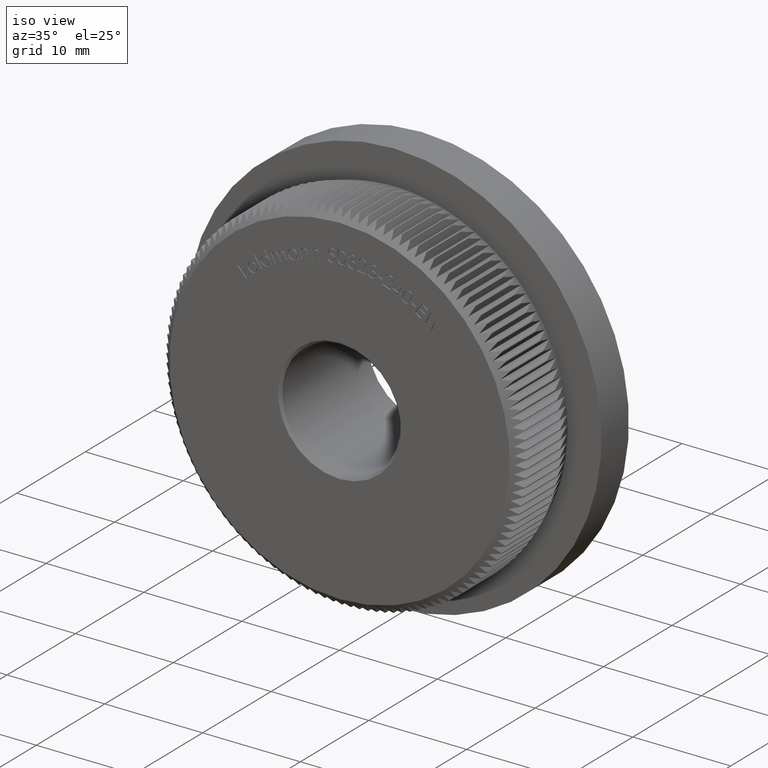
[diagram: clean part render]
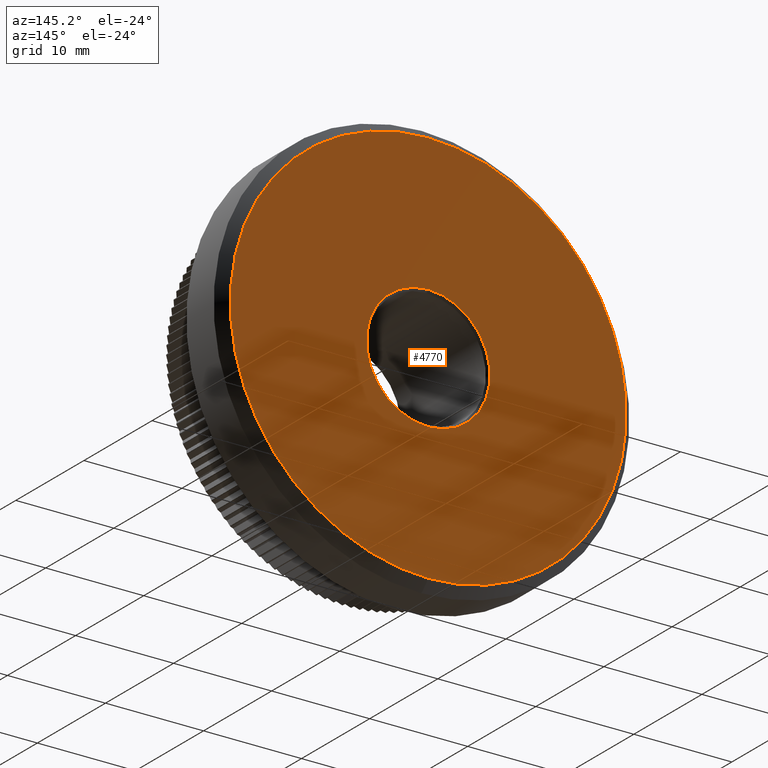
[diagram: tour spotlight — one face highlighted and labeled with its STEP entity id]
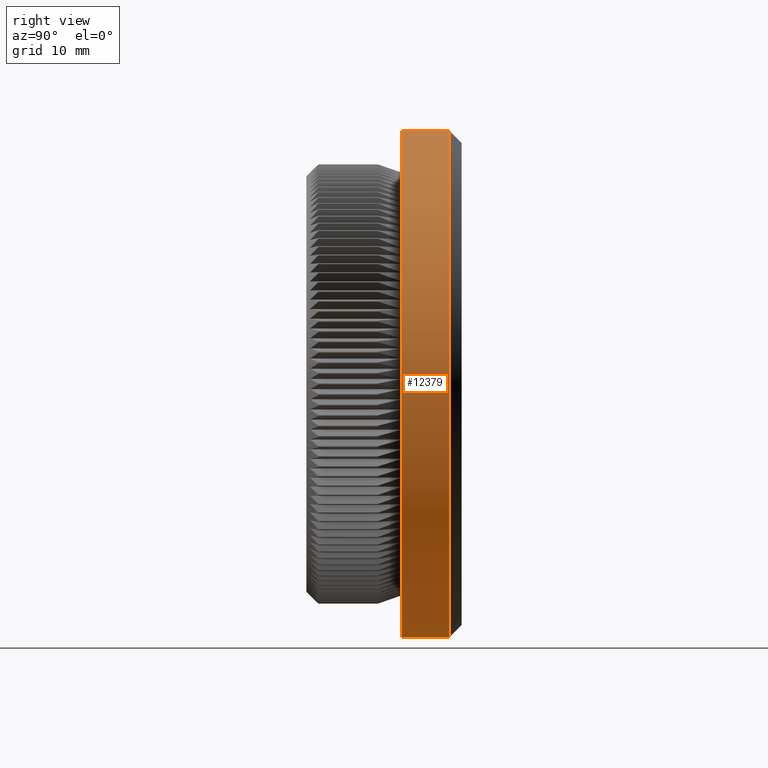
[diagram: tour spotlight — one face highlighted and labeled with its STEP entity id]
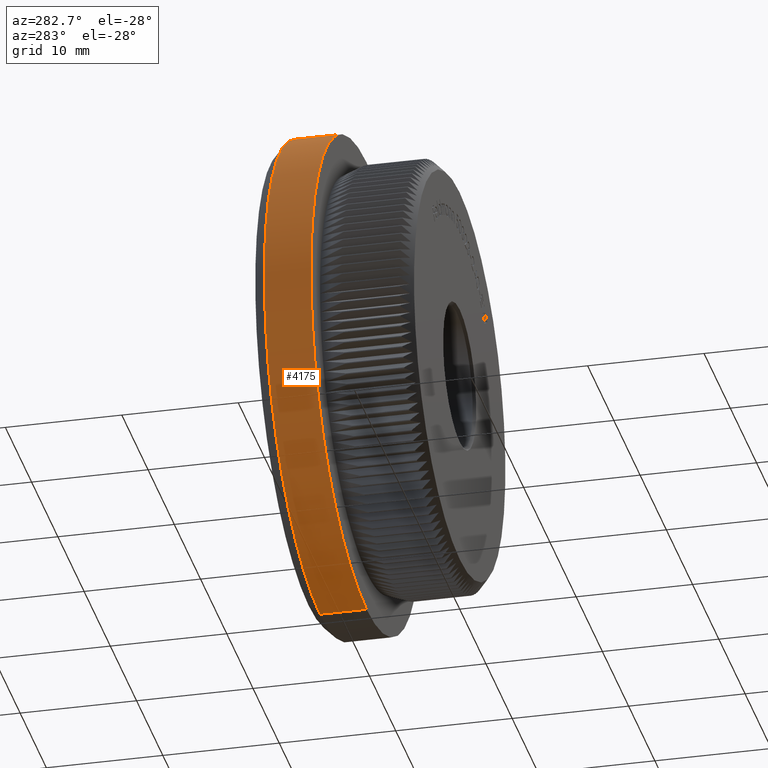
[diagram: tour spotlight — one face highlighted and labeled with its STEP entity id]
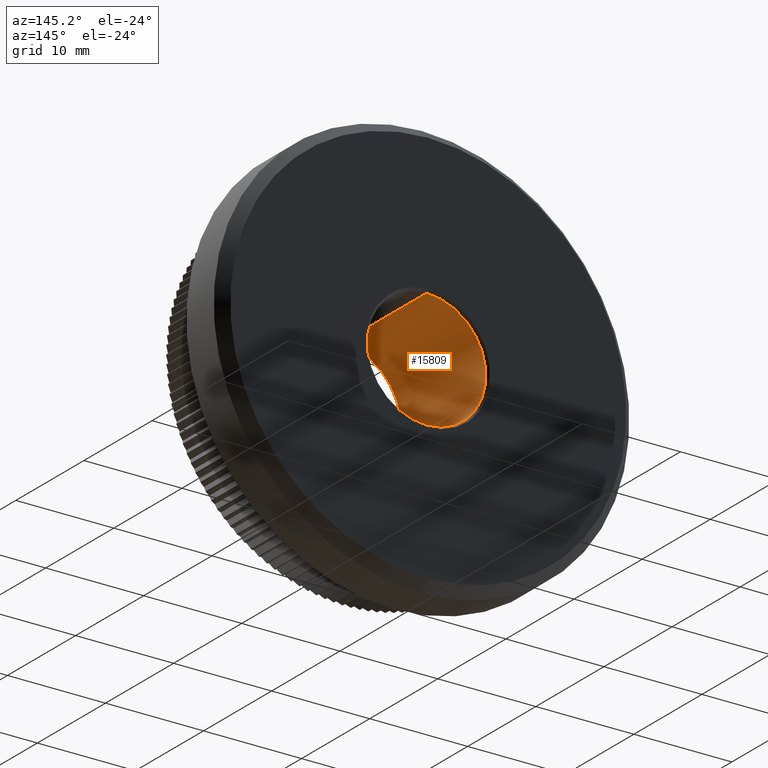
[diagram: tour spotlight — one face highlighted and labeled with its STEP entity id]
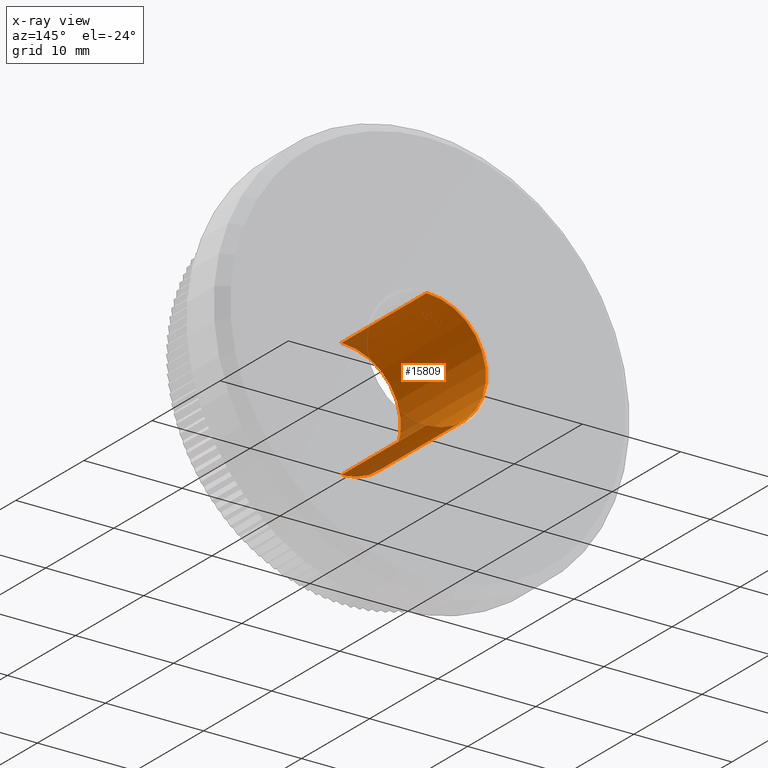
[diagram: x-ray of the same camera — body ghosted, this tour face saturated]
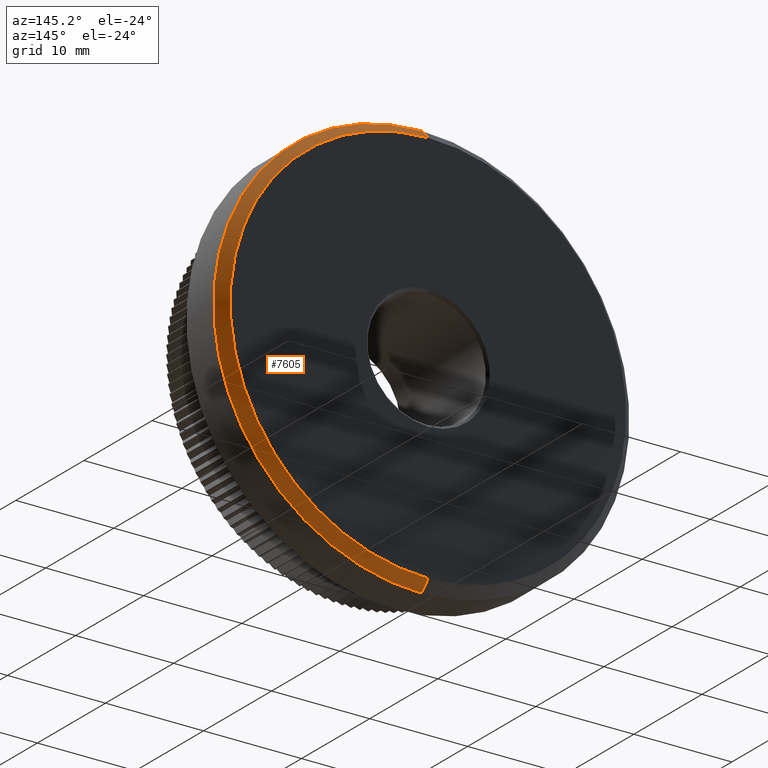
[diagram: tour spotlight — one face highlighted and labeled with its STEP entity id]
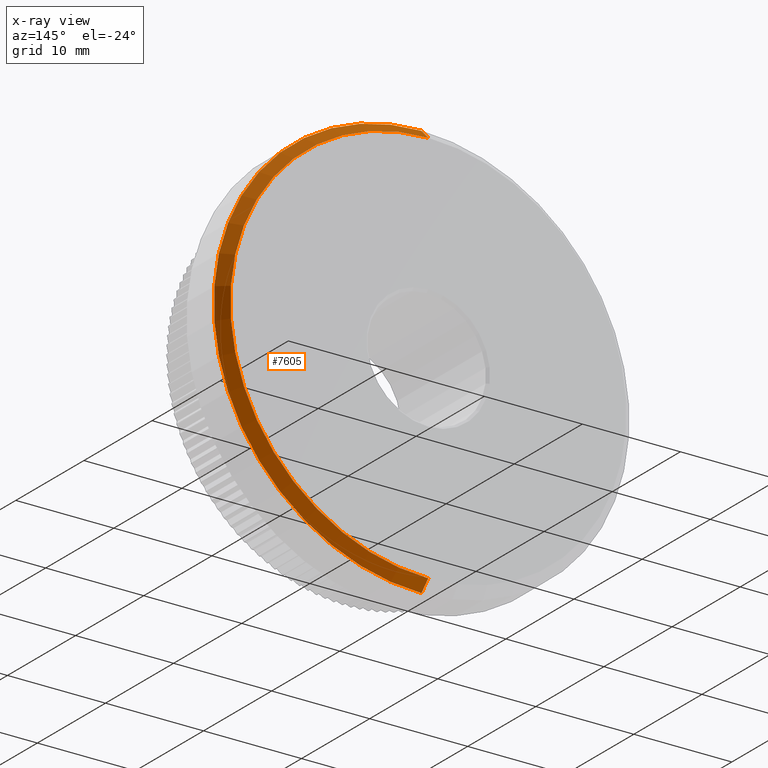
[diagram: x-ray of the same camera — body ghosted, this tour face saturated]
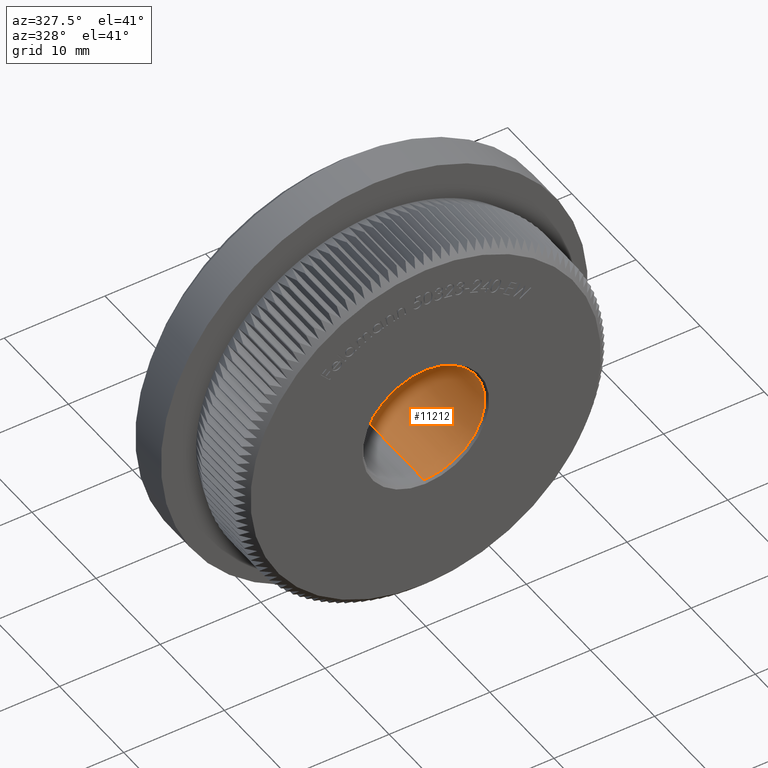
[diagram: tour spotlight — one face highlighted and labeled with its STEP entity id]
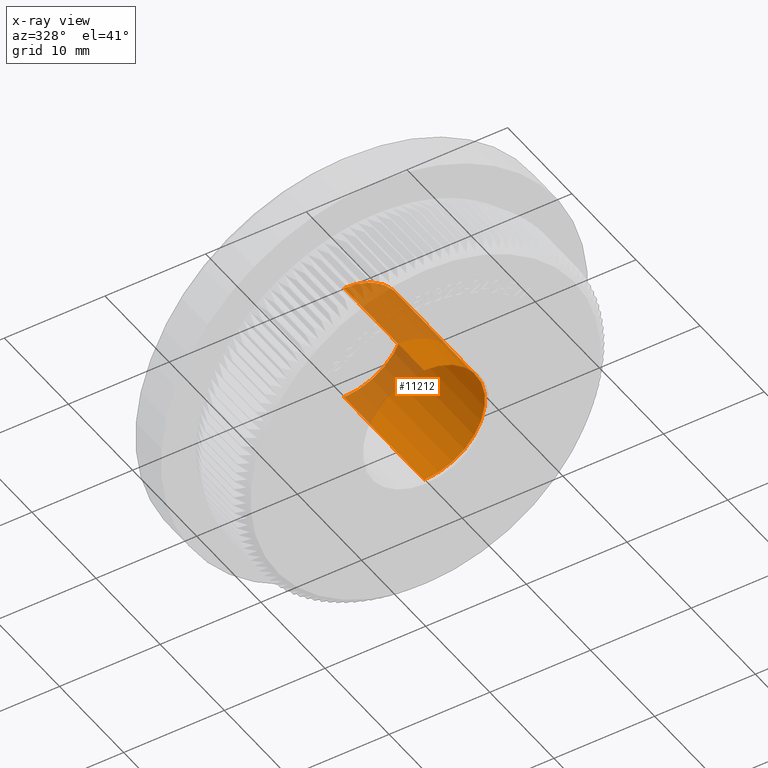
[diagram: x-ray of the same camera — body ghosted, this tour face saturated]
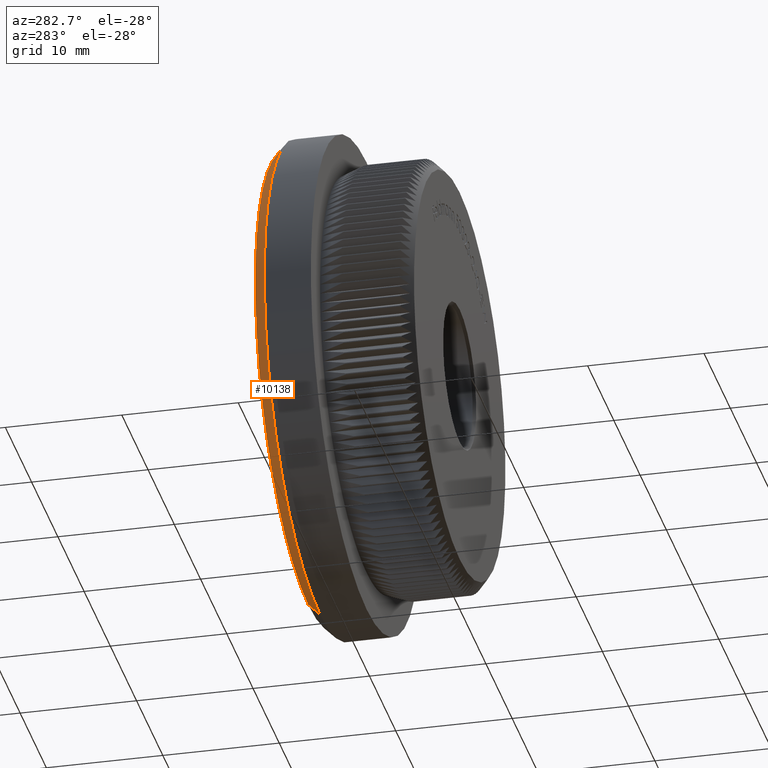
[diagram: tour spotlight — one face highlighted and labeled with its STEP entity id]
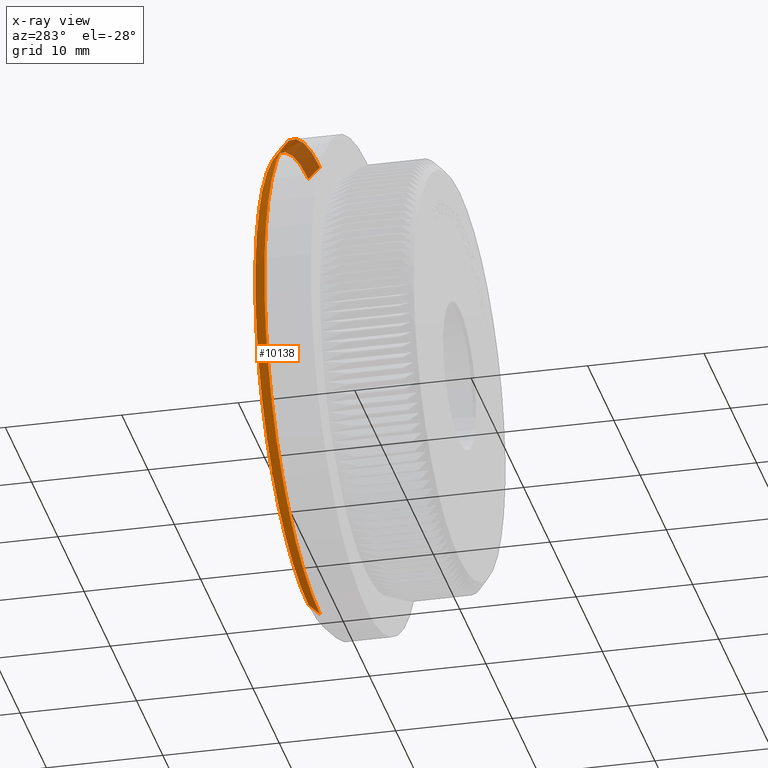
[diagram: x-ray of the same camera — body ghosted, this tour face saturated]
A machine part: a face-by-face anatomy tour. The part has 799 B-rep faces; the first image is the clean iso view, then the 7 largest visible faces are spotlighted one at a time (largest first), each with its STEP entity span.

Face 1 — auxiliary view, entity #4770. In plain terms, the highlighted planar face has unit normal (0, 1, 0).
Definition (entity closure, byte-faithful):
#199 = DIRECTION ( 'NONE',  ( 0.0000000000000000000, 0.0000000000000000000, 1.000000000000000000 ) ) ;
#1274 = EDGE_LOOP ( 'NONE', ( #17078, #18402 ) ) ;
#1916 = AXIS2_PLACEMENT_3D ( 'NONE', #18296, #11262, #4295 ) ;
#2190 = FACE_BOUND ( 'NONE', #4739, .T. ) ;
#2567 = FACE_OUTER_BOUND ( 'NONE', #1274, .T. ) ;
#2642 = DIRECTION ( 'NONE',  ( 0.0000000000000000000, 0.0000000000000000000, 1.000000000000000000 ) ) ;
#2661 = DIRECTION ( 'NONE',  ( -0.0000000000000000000, -1.000000000000000000, -0.0000000000000000000 ) ) ;
#2829 = EDGE_CURVE ( 'NONE', #27174, #24375, #16369, .T. ) ;
#4295 = DIRECTION ( 'NONE',  ( 0.0000000000000000000, 0.0000000000000000000, 1.000000000000000000 ) ) ;
#4739 = EDGE_LOOP ( 'NONE', ( #6419, #22198 ) ) ;
#4770 = ADVANCED_FACE ( 'NONE', ( #2190, #2567 ), #25282, .T. ) ;
#5091 = EDGE_CURVE ( 'NONE', #5903, #18753, #12219, .T. ) ;
#5903 = VERTEX_POINT ( 'NONE', #18409 ) ;
#6263 = AXIS2_PLACEMENT_3D ( 'NONE', #21203, #2661, #199 ) ;
#6419 = ORIENTED_EDGE ( 'NONE', *, *, #17568, .T. ) ;
#6582 = CIRCLE ( 'NONE', #1916, 6.299999999999964300 ) ;
#7242 = AXIS2_PLACEMENT_3D ( 'NONE', #24272, #26643, #2642 ) ;
#11262 = DIRECTION ( 'NONE',  ( -0.0000000000000000000, -1.000000000000000000, -0.0000000000000000000 ) ) ;
#12219 = CIRCLE ( 'NONE', #6263, 6.299999999999964300 ) ;
#14206 = AXIS2_PLACEMENT_3D ( 'NONE', #15990, #15884, #18786 ) ;
#15884 = DIRECTION ( 'NONE',  ( 0.0000000000000000000, 1.000000000000000000, 0.0000000000000000000 ) ) ;
#15990 = CARTESIAN_POINT ( 'NONE',  ( 0.0000000000000000000, 13.00000000000000000, 0.0000000000000000000 ) ) ;
#16369 = CIRCLE ( 'NONE', #7242, 20.19999999999999200 ) ;
#16759 = AXIS2_PLACEMENT_3D ( 'NONE', #25328, #27718, #29576 ) ;
#17078 = ORIENTED_EDGE ( 'NONE', *, *, #2829, .T. ) ;
#17568 = EDGE_CURVE ( 'NONE', #18753, #5903, #6582, .T. ) ;
#18296 = CARTESIAN_POINT ( 'NONE',  ( 0.0000000000000000000, 13.00000000000000000, 0.0000000000000000000 ) ) ;
#18402 = ORIENTED_EDGE ( 'NONE', *, *, #29204, .T. ) ;
#18409 = CARTESIAN_POINT ( 'NONE',  ( 7.715274834628282000E-016, 13.00000000000000000, -6.299999999999964300 ) ) ;
#18753 = VERTEX_POINT ( 'NONE', #19341 ) ;
#18786 = DIRECTION ( 'NONE',  ( 0.0000000000000000000, -0.0000000000000000000, 1.000000000000000000 ) ) ;
#19341 = CARTESIAN_POINT ( 'NONE',  ( 0.0000000000000000000, 13.00000000000000000, 6.299999999999964300 ) ) ;
#21203 = CARTESIAN_POINT ( 'NONE',  ( 0.0000000000000000000, 13.00000000000000000, 0.0000000000000000000 ) ) ;
#22198 = ORIENTED_EDGE ( 'NONE', *, *, #5091, .T. ) ;
#24272 = CARTESIAN_POINT ( 'NONE',  ( 0.0000000000000000000, 13.00000000000000000, 0.0000000000000000000 ) ) ;
#24375 = VERTEX_POINT ( 'NONE', #28049 ) ;
#25282 = PLANE ( 'NONE',  #14206 ) ;
#25328 = CARTESIAN_POINT ( 'NONE',  ( 0.0000000000000000000, 13.00000000000000000, 0.0000000000000000000 ) ) ;
#26643 = DIRECTION ( 'NONE',  ( 0.0000000000000000000, 1.000000000000000000, 0.0000000000000000000 ) ) ;
#27174 = VERTEX_POINT ( 'NONE', #30074 ) ;
#27718 = DIRECTION ( 'NONE',  ( 0.0000000000000000000, 1.000000000000000000, 0.0000000000000000000 ) ) ;
#28049 = CARTESIAN_POINT ( 'NONE',  ( 2.535018874235020400E-015, 13.00000000000000000, 20.19999999999999200 ) ) ;
#29204 = EDGE_CURVE ( 'NONE', #24375, #27174, #30360, .T. ) ;
#29576 = DIRECTION ( 'NONE',  ( 0.0000000000000000000, 0.0000000000000000000, 1.000000000000000000 ) ) ;
#30074 = CARTESIAN_POINT ( 'NONE',  ( 0.0000000000000000000, 13.00000000000000000, -20.19999999999999200 ) ) ;
#30360 = CIRCLE ( 'NONE', #16759, 20.19999999999999200 ) ;

Face 2 — right view, entity #12379. In plain terms, the highlighted cylindrical surface (partial cylindrical patch) has radius 21.2 mm, axis along (-0, -1, -0).
Definition (entity closure, byte-faithful):
#87 = DIRECTION ( 'NONE',  ( 0.0000000000000000000, 0.0000000000000000000, -1.000000000000000000 ) ) ;
#818 = ORIENTED_EDGE ( 'NONE', *, *, #6697, .T. ) ;
#863 = DIRECTION ( 'NONE',  ( -0.0000000000000000000, -1.000000000000000000, -0.0000000000000000000 ) ) ;
#1765 = DIRECTION ( 'NONE',  ( -0.0000000000000000000, -1.000000000000000000, -0.0000000000000000000 ) ) ;
#4356 = CARTESIAN_POINT ( 'NONE',  ( 0.0000000000000000000, 8.000000000000000000, -21.19999999999999900 ) ) ;
#6037 = LINE ( 'NONE', #15098, #24185 ) ;
#6198 = DIRECTION ( 'NONE',  ( 0.0000000000000000000, 0.0000000000000000000, -1.000000000000000000 ) ) ;
#6586 = AXIS2_PLACEMENT_3D ( 'NONE', #8277, #20361, #6198 ) ;
#6599 = VECTOR ( 'NONE', #1765, 1000.000000000000000 ) ;
#6697 = EDGE_CURVE ( 'NONE', #10442, #27134, #27292, .T. ) ;
#7153 = CARTESIAN_POINT ( 'NONE',  ( 0.0000000000000000000, 11.99999999999999800, -21.19999999999999900 ) ) ;
#7730 = DIRECTION ( 'NONE',  ( 0.0000000000000000000, 0.0000000000000000000, 1.000000000000000000 ) ) ;
#8277 = CARTESIAN_POINT ( 'NONE',  ( 0.0000000000000000000, 0.0000000000000000000, 0.0000000000000000000 ) ) ;
#8597 = CYLINDRICAL_SURFACE ( 'NONE', #6586, 21.19999999999999900 ) ;
#10442 = VERTEX_POINT ( 'NONE', #16136 ) ;
#11807 = AXIS2_PLACEMENT_3D ( 'NONE', #12291, #863, #7730 ) ;
#12100 = EDGE_LOOP ( 'NONE', ( #27916, #818, #13398, #30579 ) ) ;
#12291 = CARTESIAN_POINT ( 'NONE',  ( 0.0000000000000000000, 11.99999999999999800, 0.0000000000000000000 ) ) ;
#12379 = ADVANCED_FACE ( 'NONE', ( #25982 ), #8597, .T. ) ;
#13398 = ORIENTED_EDGE ( 'NONE', *, *, #13597, .F. ) ;
#13558 = CARTESIAN_POINT ( 'NONE',  ( 2.596251214192388800E-015, 0.0000000000000000000, 21.19999999999999900 ) ) ;
#13597 = EDGE_CURVE ( 'NONE', #20447, #27134, #27829, .T. ) ;
#14261 = DIRECTION ( 'NONE',  ( -0.0000000000000000000, -1.000000000000000000, -0.0000000000000000000 ) ) ;
#14995 = DIRECTION ( 'NONE',  ( -0.0000000000000000000, -1.000000000000000000, -0.0000000000000000000 ) ) ;
#15098 = CARTESIAN_POINT ( 'NONE',  ( 0.0000000000000000000, 0.0000000000000000000, -21.19999999999999900 ) ) ;
#15102 = VERTEX_POINT ( 'NONE', #7153 ) ;
#16136 = CARTESIAN_POINT ( 'NONE',  ( 2.596251214192388800E-015, 11.99999999999999800, 21.19999999999999900 ) ) ;
#20361 = DIRECTION ( 'NONE',  ( -0.0000000000000000000, -1.000000000000000000, -0.0000000000000000000 ) ) ;
#20447 = VERTEX_POINT ( 'NONE', #4356 ) ;
#22841 = AXIS2_PLACEMENT_3D ( 'NONE', #23775, #14261, #87 ) ;
#23775 = CARTESIAN_POINT ( 'NONE',  ( 0.0000000000000000000, 8.000000000000000000, 0.0000000000000000000 ) ) ;
#24185 = VECTOR ( 'NONE', #14995, 1000.000000000000000 ) ;
#24909 = CARTESIAN_POINT ( 'NONE',  ( 2.596251214192388800E-015, 8.000000000000000000, 21.19999999999999900 ) ) ;
#25525 = EDGE_CURVE ( 'NONE', #15102, #20447, #6037, .T. ) ;
#25982 = FACE_OUTER_BOUND ( 'NONE', #12100, .T. ) ;
#27134 = VERTEX_POINT ( 'NONE', #24909 ) ;
#27292 = LINE ( 'NONE', #13558, #6599 ) ;
#27829 = CIRCLE ( 'NONE', #22841, 21.19999999999999900 ) ;
#27916 = ORIENTED_EDGE ( 'NONE', *, *, #30162, .T. ) ;
#29820 = CIRCLE ( 'NONE', #11807, 21.19999999999999900 ) ;
#30162 = EDGE_CURVE ( 'NONE', #15102, #10442, #29820, .T. ) ;
#30579 = ORIENTED_EDGE ( 'NONE', *, *, #25525, .F. ) ;

Face 3 — auxiliary view, entity #4175. In plain terms, the highlighted cylindrical surface (partial cylindrical patch) has radius 21.2 mm, axis along (-0, -1, -0).
Definition (entity closure, byte-faithful):
#1675 = AXIS2_PLACEMENT_3D ( 'NONE', #18125, #4132, #11112 ) ;
#1765 = DIRECTION ( 'NONE',  ( -0.0000000000000000000, -1.000000000000000000, -0.0000000000000000000 ) ) ;
#2495 = AXIS2_PLACEMENT_3D ( 'NONE', #3904, #25317, #4200 ) ;
#3734 = ORIENTED_EDGE ( 'NONE', *, *, #13510, .T. ) ;
#3904 = CARTESIAN_POINT ( 'NONE',  ( 0.0000000000000000000, 8.000000000000000000, 0.0000000000000000000 ) ) ;
#4132 = DIRECTION ( 'NONE',  ( -0.0000000000000000000, -1.000000000000000000, -0.0000000000000000000 ) ) ;
#4175 = ADVANCED_FACE ( 'NONE', ( #25162 ), #29608, .T. ) ;
#4200 = DIRECTION ( 'NONE',  ( 0.0000000000000000000, 0.0000000000000000000, -1.000000000000000000 ) ) ;
#4356 = CARTESIAN_POINT ( 'NONE',  ( 0.0000000000000000000, 8.000000000000000000, -21.19999999999999900 ) ) ;
#4536 = CARTESIAN_POINT ( 'NONE',  ( 0.0000000000000000000, 11.99999999999999800, 0.0000000000000000000 ) ) ;
#5397 = EDGE_LOOP ( 'NONE', ( #9300, #3734, #7835, #18274 ) ) ;
#5683 = EDGE_CURVE ( 'NONE', #27134, #20447, #24393, .T. ) ;
#5972 = CIRCLE ( 'NONE', #19108, 21.19999999999999900 ) ;
#6037 = LINE ( 'NONE', #15098, #24185 ) ;
#6599 = VECTOR ( 'NONE', #1765, 1000.000000000000000 ) ;
#6697 = EDGE_CURVE ( 'NONE', #10442, #27134, #27292, .T. ) ;
#7153 = CARTESIAN_POINT ( 'NONE',  ( 0.0000000000000000000, 11.99999999999999800, -21.19999999999999900 ) ) ;
#7835 = ORIENTED_EDGE ( 'NONE', *, *, #25525, .T. ) ;
#9300 = ORIENTED_EDGE ( 'NONE', *, *, #6697, .F. ) ;
#10442 = VERTEX_POINT ( 'NONE', #16136 ) ;
#11112 = DIRECTION ( 'NONE',  ( 0.0000000000000000000, 0.0000000000000000000, -1.000000000000000000 ) ) ;
#13510 = EDGE_CURVE ( 'NONE', #10442, #15102, #5972, .T. ) ;
#13558 = CARTESIAN_POINT ( 'NONE',  ( 2.596251214192388800E-015, 0.0000000000000000000, 21.19999999999999900 ) ) ;
#14995 = DIRECTION ( 'NONE',  ( -0.0000000000000000000, -1.000000000000000000, -0.0000000000000000000 ) ) ;
#15098 = CARTESIAN_POINT ( 'NONE',  ( 0.0000000000000000000, 0.0000000000000000000, -21.19999999999999900 ) ) ;
#15102 = VERTEX_POINT ( 'NONE', #7153 ) ;
#16136 = CARTESIAN_POINT ( 'NONE',  ( 2.596251214192388800E-015, 11.99999999999999800, 21.19999999999999900 ) ) ;
#18125 = CARTESIAN_POINT ( 'NONE',  ( 0.0000000000000000000, 0.0000000000000000000, 0.0000000000000000000 ) ) ;
#18274 = ORIENTED_EDGE ( 'NONE', *, *, #5683, .F. ) ;
#19108 = AXIS2_PLACEMENT_3D ( 'NONE', #4536, #28128, #23459 ) ;
#20447 = VERTEX_POINT ( 'NONE', #4356 ) ;
#23459 = DIRECTION ( 'NONE',  ( 0.0000000000000000000, 0.0000000000000000000, 1.000000000000000000 ) ) ;
#24185 = VECTOR ( 'NONE', #14995, 1000.000000000000000 ) ;
#24393 = CIRCLE ( 'NONE', #2495, 21.19999999999999900 ) ;
#24909 = CARTESIAN_POINT ( 'NONE',  ( 2.596251214192388800E-015, 8.000000000000000000, 21.19999999999999900 ) ) ;
#25162 = FACE_OUTER_BOUND ( 'NONE', #5397, .T. ) ;
#25317 = DIRECTION ( 'NONE',  ( -0.0000000000000000000, -1.000000000000000000, -0.0000000000000000000 ) ) ;
#25525 = EDGE_CURVE ( 'NONE', #15102, #20447, #6037, .T. ) ;
#27134 = VERTEX_POINT ( 'NONE', #24909 ) ;
#27292 = LINE ( 'NONE', #13558, #6599 ) ;
#28128 = DIRECTION ( 'NONE',  ( -0.0000000000000000000, -1.000000000000000000, -0.0000000000000000000 ) ) ;
#29608 = CYLINDRICAL_SURFACE ( 'NONE', #1675, 21.19999999999999900 ) ;

Face 4 — auxiliary view, entity #15809. An x-ray twin of the same camera follows (body ghosted, this face saturated) — the face is partly hidden behind the body. In plain terms, the highlighted cylindrical surface (partial cylindrical patch) has radius 6.05 mm, axis along (-0, -1, -0).
Definition (entity closure, byte-faithful):
#2947 = CARTESIAN_POINT ( 'NONE',  ( 0.0000000000000000000, 0.2500000000000418600, -6.049999999999999800 ) ) ;
#3198 = CARTESIAN_POINT ( 'NONE',  ( 0.0000000000000000000, 12.75000000000003400, -6.049999999999999800 ) ) ;
#3924 = CARTESIAN_POINT ( 'NONE',  ( 0.0000000000000000000, 13.00000000000000000, 0.0000000000000000000 ) ) ;
#4908 = VERTEX_POINT ( 'NONE', #3198 ) ;
#5414 = EDGE_LOOP ( 'NONE', ( #20272, #29079, #28454, #26308 ) ) ;
#6622 = CARTESIAN_POINT ( 'NONE',  ( 0.0000000000000000000, 13.00000000000000000, -6.049999999999999800 ) ) ;
#7191 = VECTOR ( 'NONE', #28287, 1000.000000000000000 ) ;
#8761 = DIRECTION ( 'NONE',  ( 0.0000000000000000000, 0.0000000000000000000, -1.000000000000000000 ) ) ;
#9063 = AXIS2_PLACEMENT_3D ( 'NONE', #3924, #27831, #25235 ) ;
#9565 = VERTEX_POINT ( 'NONE', #10941 ) ;
#10621 = DIRECTION ( 'NONE',  ( 0.0000000000000000000, 0.0000000000000000000, 1.000000000000000000 ) ) ;
#10658 = VERTEX_POINT ( 'NONE', #2947 ) ;
#10941 = CARTESIAN_POINT ( 'NONE',  ( 7.409113134841484500E-016, 12.75000000000003400, 6.049999999999999800 ) ) ;
#11454 = CIRCLE ( 'NONE', #28302, 6.049999999999999800 ) ;
#12062 = CARTESIAN_POINT ( 'NONE',  ( 7.409113134841484500E-016, 13.00000000000000000, 6.049999999999999800 ) ) ;
#12498 = LINE ( 'NONE', #6622, #17275 ) ;
#14030 = CARTESIAN_POINT ( 'NONE',  ( 0.0000000000000000000, 0.2500000000000418600, 0.0000000000000000000 ) ) ;
#15809 = ADVANCED_FACE ( 'NONE', ( #25503 ), #18500, .F. ) ;
#17275 = VECTOR ( 'NONE', #18425, 1000.000000000000000 ) ;
#17686 = AXIS2_PLACEMENT_3D ( 'NONE', #22591, #27233, #10621 ) ;
#18425 = DIRECTION ( 'NONE',  ( -0.0000000000000000000, -1.000000000000000000, -0.0000000000000000000 ) ) ;
#18500 = CYLINDRICAL_SURFACE ( 'NONE', #9063, 6.049999999999999800 ) ;
#18555 = EDGE_CURVE ( 'NONE', #4908, #10658, #12498, .T. ) ;
#19011 = DIRECTION ( 'NONE',  ( 0.0000000000000000000, -1.000000000000000000, 0.0000000000000000000 ) ) ;
#20035 = EDGE_CURVE ( 'NONE', #29234, #10658, #11454, .T. ) ;
#20272 = ORIENTED_EDGE ( 'NONE', *, *, #28036, .T. ) ;
#22591 = CARTESIAN_POINT ( 'NONE',  ( 0.0000000000000000000, 12.75000000000003400, 0.0000000000000000000 ) ) ;
#24980 = EDGE_CURVE ( 'NONE', #9565, #29234, #29748, .T. ) ;
#25235 = DIRECTION ( 'NONE',  ( 0.0000000000000000000, 0.0000000000000000000, -1.000000000000000000 ) ) ;
#25503 = FACE_OUTER_BOUND ( 'NONE', #5414, .T. ) ;
#25853 = CARTESIAN_POINT ( 'NONE',  ( 7.409113134841484500E-016, 0.2500000000000418600, 6.049999999999999800 ) ) ;
#26308 = ORIENTED_EDGE ( 'NONE', *, *, #18555, .F. ) ;
#27233 = DIRECTION ( 'NONE',  ( -0.0000000000000000000, 1.000000000000000000, -0.0000000000000000000 ) ) ;
#27831 = DIRECTION ( 'NONE',  ( -0.0000000000000000000, -1.000000000000000000, -0.0000000000000000000 ) ) ;
#28036 = EDGE_CURVE ( 'NONE', #4908, #9565, #28201, .T. ) ;
#28201 = CIRCLE ( 'NONE', #17686, 6.049999999999999800 ) ;
#28287 = DIRECTION ( 'NONE',  ( -0.0000000000000000000, -1.000000000000000000, -0.0000000000000000000 ) ) ;
#28302 = AXIS2_PLACEMENT_3D ( 'NONE', #14030, #19011, #8761 ) ;
#28454 = ORIENTED_EDGE ( 'NONE', *, *, #20035, .T. ) ;
#29079 = ORIENTED_EDGE ( 'NONE', *, *, #24980, .T. ) ;
#29234 = VERTEX_POINT ( 'NONE', #25853 ) ;
#29748 = LINE ( 'NONE', #12062, #7191 ) ;

Face 5 — auxiliary view, entity #7605. An x-ray twin of the same camera follows (body ghosted, this face saturated) — the face is partly hidden behind the body. In plain terms, the highlighted conical surface has half-angle 45 deg.
Definition (entity closure, byte-faithful):
#863 = DIRECTION ( 'NONE',  ( -0.0000000000000000000, -1.000000000000000000, -0.0000000000000000000 ) ) ;
#2424 = EDGE_CURVE ( 'NONE', #24375, #10442, #20050, .T. ) ;
#4287 = DIRECTION ( 'NONE',  ( 0.0000000000000000000, -0.7071067811865451300, -0.7071067811865500200 ) ) ;
#7153 = CARTESIAN_POINT ( 'NONE',  ( 0.0000000000000000000, 11.99999999999999800, -21.19999999999999900 ) ) ;
#7605 = ADVANCED_FACE ( 'NONE', ( #7674 ), #21240, .T. ) ;
#7674 = FACE_OUTER_BOUND ( 'NONE', #24238, .T. ) ;
#7730 = DIRECTION ( 'NONE',  ( 0.0000000000000000000, 0.0000000000000000000, 1.000000000000000000 ) ) ;
#8223 = VECTOR ( 'NONE', #24650, 1000.000000000000100 ) ;
#8649 = EDGE_CURVE ( 'NONE', #27174, #15102, #16524, .T. ) ;
#8910 = AXIS2_PLACEMENT_3D ( 'NONE', #14589, #23799, #16684 ) ;
#10442 = VERTEX_POINT ( 'NONE', #16136 ) ;
#11219 = ORIENTED_EDGE ( 'NONE', *, *, #2424, .T. ) ;
#11807 = AXIS2_PLACEMENT_3D ( 'NONE', #12291, #863, #7730 ) ;
#12291 = CARTESIAN_POINT ( 'NONE',  ( 0.0000000000000000000, 11.99999999999999800, 0.0000000000000000000 ) ) ;
#14589 = CARTESIAN_POINT ( 'NONE',  ( 0.0000000000000000000, 11.99999999999999800, 0.0000000000000000000 ) ) ;
#15102 = VERTEX_POINT ( 'NONE', #7153 ) ;
#15454 = CARTESIAN_POINT ( 'NONE',  ( 2.596251214192388800E-015, 11.99999999999999800, 21.19999999999999900 ) ) ;
#16121 = CARTESIAN_POINT ( 'NONE',  ( 0.0000000000000000000, 11.99999999999999800, -21.19999999999999900 ) ) ;
#16136 = CARTESIAN_POINT ( 'NONE',  ( 2.596251214192388800E-015, 11.99999999999999800, 21.19999999999999900 ) ) ;
#16524 = LINE ( 'NONE', #16121, #29810 ) ;
#16684 = DIRECTION ( 'NONE',  ( 0.0000000000000000000, 0.0000000000000000000, -1.000000000000000000 ) ) ;
#16759 = AXIS2_PLACEMENT_3D ( 'NONE', #25328, #27718, #29576 ) ;
#20050 = LINE ( 'NONE', #15454, #8223 ) ;
#20777 = ORIENTED_EDGE ( 'NONE', *, *, #30162, .F. ) ;
#21240 = CONICAL_SURFACE ( 'NONE', #8910, 21.19999999999999900, 0.7853981633974517200 ) ;
#21869 = ORIENTED_EDGE ( 'NONE', *, *, #8649, .F. ) ;
#23799 = DIRECTION ( 'NONE',  ( -0.0000000000000000000, -1.000000000000000000, -0.0000000000000000000 ) ) ;
#24238 = EDGE_LOOP ( 'NONE', ( #27888, #11219, #20777, #21869 ) ) ;
#24375 = VERTEX_POINT ( 'NONE', #28049 ) ;
#24650 = DIRECTION ( 'NONE',  ( 8.659560562354962400E-017, -0.7071067811865451300, 0.7071067811865500200 ) ) ;
#25328 = CARTESIAN_POINT ( 'NONE',  ( 0.0000000000000000000, 13.00000000000000000, 0.0000000000000000000 ) ) ;
#27174 = VERTEX_POINT ( 'NONE', #30074 ) ;
#27718 = DIRECTION ( 'NONE',  ( 0.0000000000000000000, 1.000000000000000000, 0.0000000000000000000 ) ) ;
#27888 = ORIENTED_EDGE ( 'NONE', *, *, #29204, .F. ) ;
#28049 = CARTESIAN_POINT ( 'NONE',  ( 2.535018874235020400E-015, 13.00000000000000000, 20.19999999999999200 ) ) ;
#29204 = EDGE_CURVE ( 'NONE', #24375, #27174, #30360, .T. ) ;
#29576 = DIRECTION ( 'NONE',  ( 0.0000000000000000000, 0.0000000000000000000, 1.000000000000000000 ) ) ;
#29810 = VECTOR ( 'NONE', #4287, 1000.000000000000100 ) ;
#29820 = CIRCLE ( 'NONE', #11807, 21.19999999999999900 ) ;
#30074 = CARTESIAN_POINT ( 'NONE',  ( 0.0000000000000000000, 13.00000000000000000, -20.19999999999999200 ) ) ;
#30162 = EDGE_CURVE ( 'NONE', #15102, #10442, #29820, .T. ) ;
#30360 = CIRCLE ( 'NONE', #16759, 20.19999999999999200 ) ;

Face 6 — auxiliary view, entity #11212. An x-ray twin of the same camera follows (body ghosted, this face saturated) — the face is partly hidden behind the body. In plain terms, the highlighted cylindrical surface (partial cylindrical patch) has radius 6.05 mm, axis along (-0, -1, -0).
Definition (entity closure, byte-faithful):
#834 = DIRECTION ( 'NONE',  ( 0.0000000000000000000, 0.0000000000000000000, -1.000000000000000000 ) ) ;
#1574 = CYLINDRICAL_SURFACE ( 'NONE', #24211, 6.049999999999999800 ) ;
#2947 = CARTESIAN_POINT ( 'NONE',  ( 0.0000000000000000000, 0.2500000000000418600, -6.049999999999999800 ) ) ;
#3198 = CARTESIAN_POINT ( 'NONE',  ( 0.0000000000000000000, 12.75000000000003400, -6.049999999999999800 ) ) ;
#4908 = VERTEX_POINT ( 'NONE', #3198 ) ;
#4909 = ORIENTED_EDGE ( 'NONE', *, *, #7773, .T. ) ;
#6622 = CARTESIAN_POINT ( 'NONE',  ( 0.0000000000000000000, 13.00000000000000000, -6.049999999999999800 ) ) ;
#7191 = VECTOR ( 'NONE', #28287, 1000.000000000000000 ) ;
#7645 = ORIENTED_EDGE ( 'NONE', *, *, #18555, .T. ) ;
#7773 = EDGE_CURVE ( 'NONE', #9565, #4908, #11457, .T. ) ;
#8595 = EDGE_CURVE ( 'NONE', #10658, #29234, #10228, .T. ) ;
#9565 = VERTEX_POINT ( 'NONE', #10941 ) ;
#10182 = DIRECTION ( 'NONE',  ( 0.0000000000000000000, 0.0000000000000000000, 1.000000000000000000 ) ) ;
#10228 = CIRCLE ( 'NONE', #12090, 6.049999999999999800 ) ;
#10503 = AXIS2_PLACEMENT_3D ( 'NONE', #24225, #21942, #10182 ) ;
#10658 = VERTEX_POINT ( 'NONE', #2947 ) ;
#10941 = CARTESIAN_POINT ( 'NONE',  ( 7.409113134841484500E-016, 12.75000000000003400, 6.049999999999999800 ) ) ;
#11212 = ADVANCED_FACE ( 'NONE', ( #25632 ), #1574, .F. ) ;
#11365 = DIRECTION ( 'NONE',  ( 0.0000000000000000000, 0.0000000000000000000, -1.000000000000000000 ) ) ;
#11457 = CIRCLE ( 'NONE', #10503, 6.049999999999999800 ) ;
#12062 = CARTESIAN_POINT ( 'NONE',  ( 7.409113134841484500E-016, 13.00000000000000000, 6.049999999999999800 ) ) ;
#12090 = AXIS2_PLACEMENT_3D ( 'NONE', #30168, #25604, #11365 ) ;
#12498 = LINE ( 'NONE', #6622, #17275 ) ;
#15342 = CARTESIAN_POINT ( 'NONE',  ( 0.0000000000000000000, 13.00000000000000000, 0.0000000000000000000 ) ) ;
#17275 = VECTOR ( 'NONE', #18425, 1000.000000000000000 ) ;
#18425 = DIRECTION ( 'NONE',  ( -0.0000000000000000000, -1.000000000000000000, -0.0000000000000000000 ) ) ;
#18555 = EDGE_CURVE ( 'NONE', #4908, #10658, #12498, .T. ) ;
#20086 = DIRECTION ( 'NONE',  ( -0.0000000000000000000, -1.000000000000000000, -0.0000000000000000000 ) ) ;
#20203 = ORIENTED_EDGE ( 'NONE', *, *, #24980, .F. ) ;
#21942 = DIRECTION ( 'NONE',  ( -0.0000000000000000000, 1.000000000000000000, -0.0000000000000000000 ) ) ;
#24211 = AXIS2_PLACEMENT_3D ( 'NONE', #15342, #20086, #834 ) ;
#24225 = CARTESIAN_POINT ( 'NONE',  ( 0.0000000000000000000, 12.75000000000003400, 0.0000000000000000000 ) ) ;
#24980 = EDGE_CURVE ( 'NONE', #9565, #29234, #29748, .T. ) ;
#25604 = DIRECTION ( 'NONE',  ( 0.0000000000000000000, -1.000000000000000000, 0.0000000000000000000 ) ) ;
#25632 = FACE_OUTER_BOUND ( 'NONE', #28508, .T. ) ;
#25853 = CARTESIAN_POINT ( 'NONE',  ( 7.409113134841484500E-016, 0.2500000000000418600, 6.049999999999999800 ) ) ;
#28287 = DIRECTION ( 'NONE',  ( -0.0000000000000000000, -1.000000000000000000, -0.0000000000000000000 ) ) ;
#28508 = EDGE_LOOP ( 'NONE', ( #20203, #4909, #7645, #29362 ) ) ;
#29234 = VERTEX_POINT ( 'NONE', #25853 ) ;
#29362 = ORIENTED_EDGE ( 'NONE', *, *, #8595, .T. ) ;
#29748 = LINE ( 'NONE', #12062, #7191 ) ;
#30168 = CARTESIAN_POINT ( 'NONE',  ( 0.0000000000000000000, 0.2500000000000418600, 0.0000000000000000000 ) ) ;

Face 7 — auxiliary view, entity #10138. An x-ray twin of the same camera follows (body ghosted, this face saturated) — the face is partly hidden behind the body. In plain terms, the highlighted conical surface has half-angle 45 deg.
Definition (entity closure, byte-faithful):
#588 = ORIENTED_EDGE ( 'NONE', *, *, #2829, .F. ) ;
#1654 = ORIENTED_EDGE ( 'NONE', *, *, #13510, .F. ) ;
#2424 = EDGE_CURVE ( 'NONE', #24375, #10442, #20050, .T. ) ;
#2642 = DIRECTION ( 'NONE',  ( 0.0000000000000000000, 0.0000000000000000000, 1.000000000000000000 ) ) ;
#2829 = EDGE_CURVE ( 'NONE', #27174, #24375, #16369, .T. ) ;
#4287 = DIRECTION ( 'NONE',  ( 0.0000000000000000000, -0.7071067811865451300, -0.7071067811865500200 ) ) ;
#4536 = CARTESIAN_POINT ( 'NONE',  ( 0.0000000000000000000, 11.99999999999999800, 0.0000000000000000000 ) ) ;
#5972 = CIRCLE ( 'NONE', #19108, 21.19999999999999900 ) ;
#6743 = ORIENTED_EDGE ( 'NONE', *, *, #2424, .F. ) ;
#7153 = CARTESIAN_POINT ( 'NONE',  ( 0.0000000000000000000, 11.99999999999999800, -21.19999999999999900 ) ) ;
#7242 = AXIS2_PLACEMENT_3D ( 'NONE', #24272, #26643, #2642 ) ;
#7287 = DIRECTION ( 'NONE',  ( -0.0000000000000000000, -1.000000000000000000, -0.0000000000000000000 ) ) ;
#8223 = VECTOR ( 'NONE', #24650, 1000.000000000000100 ) ;
#8649 = EDGE_CURVE ( 'NONE', #27174, #15102, #16524, .T. ) ;
#10138 = ADVANCED_FACE ( 'NONE', ( #19749 ), #13855, .T. ) ;
#10442 = VERTEX_POINT ( 'NONE', #16136 ) ;
#11841 = CARTESIAN_POINT ( 'NONE',  ( 0.0000000000000000000, 11.99999999999999800, 0.0000000000000000000 ) ) ;
#12497 = EDGE_LOOP ( 'NONE', ( #6743, #588, #29502, #1654 ) ) ;
#13510 = EDGE_CURVE ( 'NONE', #10442, #15102, #5972, .T. ) ;
#13855 = CONICAL_SURFACE ( 'NONE', #13884, 21.19999999999999900, 0.7853981633974517200 ) ;
#13884 = AXIS2_PLACEMENT_3D ( 'NONE', #11841, #7287, #14412 ) ;
#14412 = DIRECTION ( 'NONE',  ( 0.0000000000000000000, 0.0000000000000000000, -1.000000000000000000 ) ) ;
#15102 = VERTEX_POINT ( 'NONE', #7153 ) ;
#15454 = CARTESIAN_POINT ( 'NONE',  ( 2.596251214192388800E-015, 11.99999999999999800, 21.19999999999999900 ) ) ;
#16121 = CARTESIAN_POINT ( 'NONE',  ( 0.0000000000000000000, 11.99999999999999800, -21.19999999999999900 ) ) ;
#16136 = CARTESIAN_POINT ( 'NONE',  ( 2.596251214192388800E-015, 11.99999999999999800, 21.19999999999999900 ) ) ;
#16369 = CIRCLE ( 'NONE', #7242, 20.19999999999999200 ) ;
#16524 = LINE ( 'NONE', #16121, #29810 ) ;
#19108 = AXIS2_PLACEMENT_3D ( 'NONE', #4536, #28128, #23459 ) ;
#19749 = FACE_OUTER_BOUND ( 'NONE', #12497, .T. ) ;
#20050 = LINE ( 'NONE', #15454, #8223 ) ;
#23459 = DIRECTION ( 'NONE',  ( 0.0000000000000000000, 0.0000000000000000000, 1.000000000000000000 ) ) ;
#24272 = CARTESIAN_POINT ( 'NONE',  ( 0.0000000000000000000, 13.00000000000000000, 0.0000000000000000000 ) ) ;
#24375 = VERTEX_POINT ( 'NONE', #28049 ) ;
#24650 = DIRECTION ( 'NONE',  ( 8.659560562354962400E-017, -0.7071067811865451300, 0.7071067811865500200 ) ) ;
#26643 = DIRECTION ( 'NONE',  ( 0.0000000000000000000, 1.000000000000000000, 0.0000000000000000000 ) ) ;
#27174 = VERTEX_POINT ( 'NONE', #30074 ) ;
#28049 = CARTESIAN_POINT ( 'NONE',  ( 2.535018874235020400E-015, 13.00000000000000000, 20.19999999999999200 ) ) ;
#28128 = DIRECTION ( 'NONE',  ( -0.0000000000000000000, -1.000000000000000000, -0.0000000000000000000 ) ) ;
#29502 = ORIENTED_EDGE ( 'NONE', *, *, #8649, .T. ) ;
#29810 = VECTOR ( 'NONE', #4287, 1000.000000000000100 ) ;
#30074 = CARTESIAN_POINT ( 'NONE',  ( 0.0000000000000000000, 13.00000000000000000, -20.19999999999999200 ) ) ;